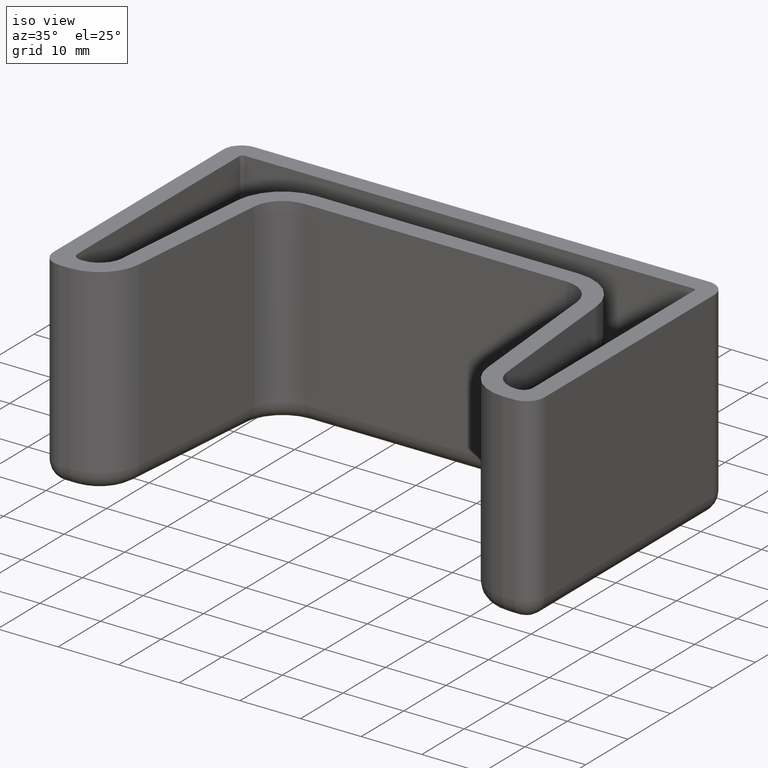
[diagram: clean part render]
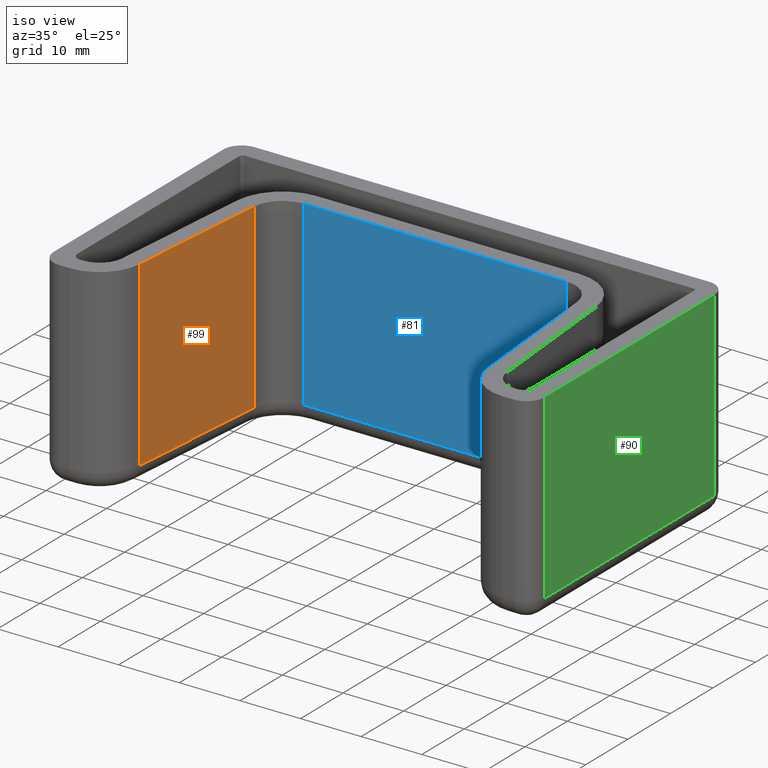
[diagram: same view with three faces highlighted in distinct colors, each labeled with its STEP entity id]
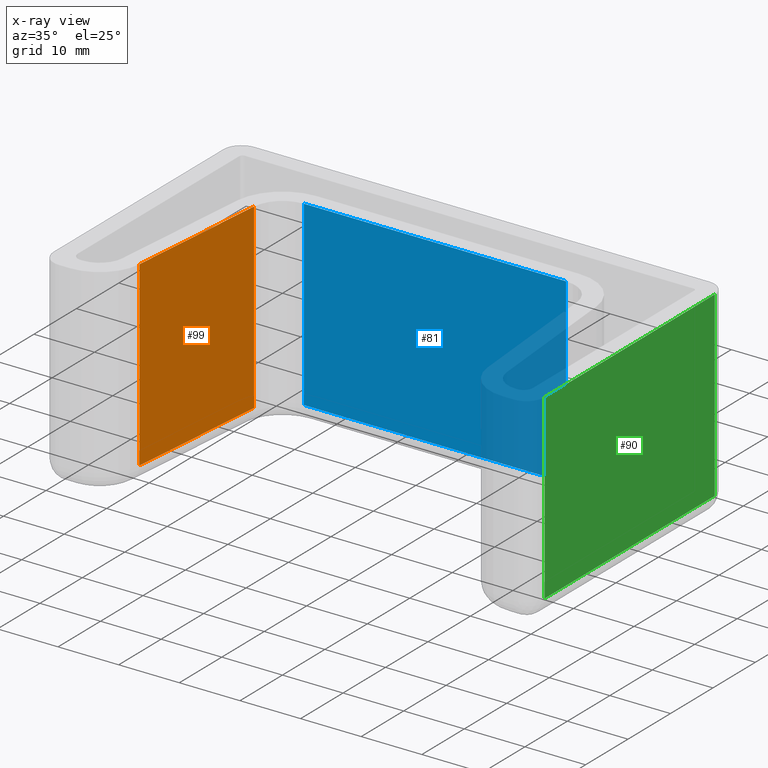
[diagram: x-ray of the same camera — body ghosted, the three highlighted faces saturated]
A machine part, iso view with three faces highlighted in distinct colors.
The next image is the same camera in x-ray (body ghosted, the three faces saturated) — at least one of them is partly hidden behind the body in this view.
Their STEP definitions:

[orange] entity #99 — the highlighted planar face has unit normal (-0.9962, 0.0872, 0).
#99 = ADVANCED_FACE( '', ( #176 ), #177, .F. );
#176 = FACE_OUTER_BOUND( '', #279, .T. );
#177 = PLANE( '', #280 );
#279 = EDGE_LOOP( '', ( #537, #538, #539, #540 ) );
#280 = AXIS2_PLACEMENT_3D( '', #541, #542, #543 );
#537 = ORIENTED_EDGE( '', *, *, #822, .F. );
#538 = ORIENTED_EDGE( '', *, *, #782, .F. );
#539 = ORIENTED_EDGE( '', *, *, #751, .T. );
#540 = ORIENTED_EDGE( '', *, *, #818, .F. );
#541 = CARTESIAN_POINT( '', ( -25.9804159057248, -2.76146722824299, -30.0000000000000 ) );
#542 = DIRECTION( '', ( -0.996194698091746, 0.0871557427476584, 1.11321488058643E-016 ) );
#543 = DIRECTION( '', ( -1.22460635382238E-016, -1.22460635382238E-016, -1.00000000000000 ) );
#751 = EDGE_CURVE( '', #891, #889, #892, .T. );
#782 = EDGE_CURVE( '', #891, #946, #948, .T. );
#818 = EDGE_CURVE( '', #1004, #889, #1006, .T. );
#822 = EDGE_CURVE( '', #946, #1004, #1010, .T. );
#889 = VERTEX_POINT( '', #1100 );
#891 = VERTEX_POINT( '', #1102 );
#892 = LINE( '', #1103, #1104 );
#946 = VERTEX_POINT( '', #1174 );
#948 = LINE( '', #1176, #1177 );
#1004 = VERTEX_POINT( '', #1255 );
#1006 = LINE( '', #1257, #1258 );
#1010 = LINE( '', #1262, #1263 );
#1100 = CARTESIAN_POINT( '', ( -28.7230650328348, -34.1100901992336, 7.64659027069720E-015 ) );
#1102 = CARTESIAN_POINT( '', ( -26.6193240983193, -10.0642212862617, 4.70191788529666E-015 ) );
#1103 = CARTESIAN_POINT( '', ( -26.4503568634731, -8.13291695451670, 4.46540912971470E-015 ) );
#1104 = VECTOR( '', #1359, 1000.00000000000 );
#1174 = CARTESIAN_POINT( '', ( -26.6193240983193, -10.0642212862617, -30.0000000000000 ) );
#1176 = CARTESIAN_POINT( '', ( -26.6193240983193, -10.0642212862617, -30.0000000000000 ) );
#1177 = VECTOR( '', #1418, 1000.00000000000 );
#1255 = CARTESIAN_POINT( '', ( -28.7230650328348, -34.1100901992336, -30.0000000000000 ) );
#1257 = CARTESIAN_POINT( '', ( -28.7230650328348, -34.1100901992336, -30.0000000000000 ) );
#1258 = VECTOR( '', #1480, 1000.00000000000 );
#1262 = CARTESIAN_POINT( '', ( -26.4503568634731, -8.13291695451670, -30.0000000000000 ) );
#1263 = VECTOR( '', #1490, 1000.00000000000 );
#1359 = DIRECTION( '', ( -0.0871557427476584, -0.996194698091746, 1.32667783326821E-016 ) );
#1418 = DIRECTION( '', ( -1.22460635382238E-016, -1.22460635382238E-016, -1.00000000000000 ) );
#1480 = DIRECTION( '', ( 1.22460635382238E-016, 1.22460635382238E-016, 1.00000000000000 ) );
#1490 = DIRECTION( '', ( -0.0871557427476584, -0.996194698091746, 1.32667783326821E-016 ) );

[blue] entity #81 — the highlighted planar face has unit normal (-0, -1, 0).
#81 = ADVANCED_FACE( '', ( #140 ), #141, .T. );
#140 = FACE_OUTER_BOUND( '', #243, .T. );
#141 = PLANE( '', #244 );
#243 = EDGE_LOOP( '', ( #403, #404, #405, #406 ) );
#244 = AXIS2_PLACEMENT_3D( '', #407, #408, #409 );
#403 = ORIENTED_EDGE( '', *, *, #779, .F. );
#404 = ORIENTED_EDGE( '', *, *, #778, .F. );
#405 = ORIENTED_EDGE( '', *, *, #753, .T. );
#406 = ORIENTED_EDGE( '', *, *, #780, .F. );
#407 = CARTESIAN_POINT( '', ( -9.58547465618601E-016, -5.50000000000000, -30.0000000000000 ) );
#408 = DIRECTION( '', ( -5.73971850987445E-047, -1.00000000000000, 1.22460635382238E-016 ) );
#409 = DIRECTION( '', ( -1.00000000000000, -3.66290887715418E-032, -2.99109086419575E-016 ) );
#753 = EDGE_CURVE( '', #895, #893, #896, .T. );
#778 = EDGE_CURVE( '', #895, #939, #942, .T. );
#779 = EDGE_CURVE( '', #939, #943, #944, .T. );
#780 = EDGE_CURVE( '', #943, #893, #945, .T. );
#893 = VERTEX_POINT( '', #1105 );
#895 = VERTEX_POINT( '', #1107 );
#896 = LINE( '', #1108, #1109 );
#939 = VERTEX_POINT( '', #1163 );
#942 = LINE( '', #1167, #1168 );
#943 = VERTEX_POINT( '', #1169 );
#944 = LINE( '', #1170, #1171 );
#945 = LINE( '', #1172, #1173 );
#1105 = CARTESIAN_POINT( '', ( -21.6383506078606, -5.49999999999999, 4.14298044655592E-015 ) );
#1107 = CARTESIAN_POINT( '', ( 21.6383506078606, -5.50000000000001, -2.79591345735131E-015 ) );
#1108 = CARTESIAN_POINT( '', ( 9.37500000000000, -5.50000000000001, 6.73533494602309E-016 ) );
#1109 = VECTOR( '', #1363, 1000.00000000000 );
#1163 = CARTESIAN_POINT( '', ( 21.6383506078606, -5.50000000000001, -30.0000000000000 ) );
#1167 = CARTESIAN_POINT( '', ( 21.6383506078606, -5.50000000000001, -30.0000000000000 ) );
#1168 = VECTOR( '', #1412, 1000.00000000000 );
#1169 = CARTESIAN_POINT( '', ( -21.6383506078606, -5.49999999999999, -30.0000000000000 ) );
#1170 = CARTESIAN_POINT( '', ( 9.37500000000000, -5.50000000000001, -30.0000000000000 ) );
#1171 = VECTOR( '', #1413, 1000.00000000000 );
#1172 = CARTESIAN_POINT( '', ( -21.6383506078606, -5.49999999999999, -30.0000000000000 ) );
#1173 = VECTOR( '', #1414, 1000.00000000000 );
#1363 = DIRECTION( '', ( -1.00000000000000, 4.21569721801813E-016, 1.22460635382238E-016 ) );
#1412 = DIRECTION( '', ( -1.22460635382238E-016, -1.22460635382238E-016, -1.00000000000000 ) );
#1413 = DIRECTION( '', ( -1.00000000000000, 4.21569721801813E-016, 1.22460635382238E-016 ) );
#1414 = DIRECTION( '', ( 1.22460635382238E-016, 1.22460635382238E-016, 1.00000000000000 ) );

[green] entity #90 — the highlighted planar face has unit normal (1, 0, -0).
#90 = ADVANCED_FACE( '', ( #158 ), #159, .T. );
#158 = FACE_OUTER_BOUND( '', #261, .T. );
#159 = PLANE( '', #262 );
#261 = EDGE_LOOP( '', ( #474, #475, #476, #477 ) );
#262 = AXIS2_PLACEMENT_3D( '', #478, #479, #480 );
#474 = ORIENTED_EDGE( '', *, *, #804, .F. );
#475 = ORIENTED_EDGE( '', *, *, #758, .F. );
#476 = ORIENTED_EDGE( '', *, *, #803, .F. );
#477 = ORIENTED_EDGE( '', *, *, #805, .F. );
#478 = CARTESIAN_POINT( '', ( 40.5000000000000, -37.5000000000000, -30.0000000000000 ) );
#479 = DIRECTION( '', ( 1.00000000000000, 1.11022302462516E-016, -1.22460635382238E-016 ) );
#480 = DIRECTION( '', ( 1.11022302462516E-016, -1.00000000000000, 1.22460635382238E-016 ) );
#758 = EDGE_CURVE( '', #902, #904, #905, .T. );
#803 = EDGE_CURVE( '', #981, #902, #983, .T. );
#804 = EDGE_CURVE( '', #904, #984, #985, .T. );
#805 = EDGE_CURVE( '', #984, #981, #986, .T. );
#902 = VERTEX_POINT( '', #1116 );
#904 = VERTEX_POINT( '', #1118 );
#905 = LINE( '', #1119, #1120 );
#981 = VERTEX_POINT( '', #1220 );
#983 = LINE( '', #1222, #1223 );
#984 = VERTEX_POINT( '', #1224 );
#985 = LINE( '', #1225, #1226 );
#986 = LINE( '', #1227, #1228 );
#1116 = CARTESIAN_POINT( '', ( 40.5000000000000, -37.5000000000000, 1.12282687488030E-015 ) );
#1118 = CARTESIAN_POINT( '', ( 40.5000000000000, 2.50000000000000, -3.77559854040921E-015 ) );
#1119 = CARTESIAN_POINT( '', ( 40.5000000000000, -27.5000000000000, -1.01779478942077E-016 ) );
#1120 = VECTOR( '', #1374, 1000.00000000000 );
#1220 = CARTESIAN_POINT( '', ( 40.5000000000000, -37.5000000000000, -30.0000000000000 ) );
#1222 = CARTESIAN_POINT( '', ( 40.5000000000000, -37.5000000000000, -30.0000000000000 ) );
#1223 = VECTOR( '', #1459, 1000.00000000000 );
#1224 = CARTESIAN_POINT( '', ( 40.5000000000000, 2.50000000000000, -30.0000000000000 ) );
#1225 = CARTESIAN_POINT( '', ( 40.5000000000000, 2.50000000000000, -30.0000000000000 ) );
#1226 = VECTOR( '', #1460, 1000.00000000000 );
#1227 = CARTESIAN_POINT( '', ( 40.5000000000000, -27.5000000000000, -30.0000000000000 ) );
#1228 = VECTOR( '', #1461, 1000.00000000000 );
#1374 = DIRECTION( '', ( -1.11022302462516E-016, 1.00000000000000, -1.22460635382238E-016 ) );
#1459 = DIRECTION( '', ( 1.22460635382238E-016, 1.22460635382238E-016, 1.00000000000000 ) );
#1460 = DIRECTION( '', ( -1.22460635382238E-016, -1.22460635382238E-016, -1.00000000000000 ) );
#1461 = DIRECTION( '', ( 1.11022302462516E-016, -1.00000000000000, 1.22460635382238E-016 ) );